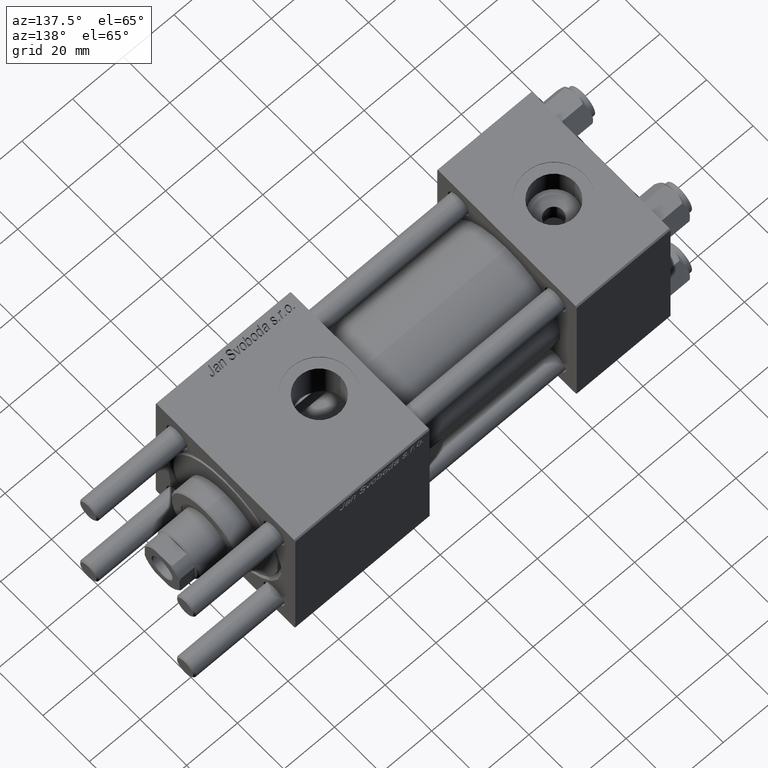
[diagram: clean part render]
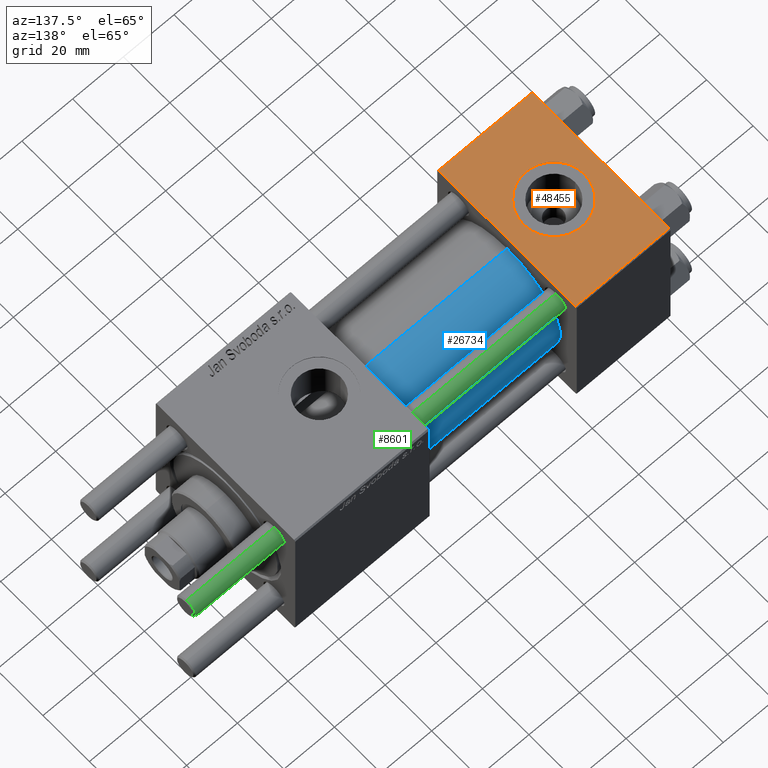
[diagram: same view with three faces highlighted in distinct colors, each labeled with its STEP entity id]
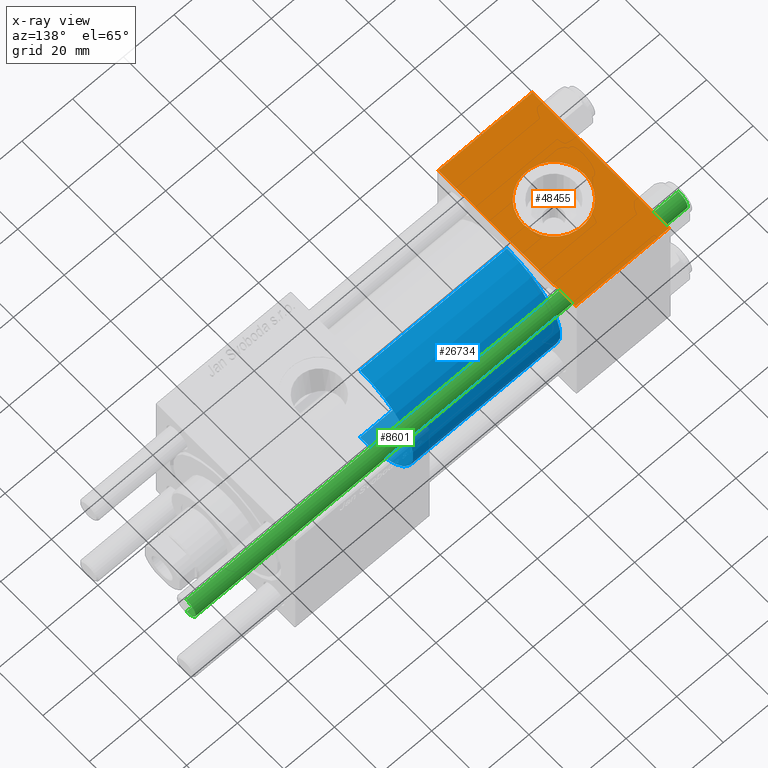
[diagram: x-ray of the same camera — body ghosted, the three highlighted faces saturated]
A machine part, auxiliary view with three faces highlighted in distinct colors.
The next image is the same camera in x-ray (body ghosted, the three faces saturated) — at least one of them is partly hidden behind the body in this view.
Their STEP definitions:

[orange] entity #48455 — the highlighted planar face has unit normal (0, 0, -1).
#434 = DIRECTION ( 'NONE',  ( 0.000000000000000000, 1.000000000000000000, 1.156482317317871725E-16 ) ) ;
#1151 = ORIENTED_EDGE ( 'NONE', *, *, #28059, .F. ) ;
#1510 = LINE ( 'NONE', #36322, #46978 ) ;
#3227 = CIRCLE ( 'NONE', #32623, 12.00000000000000000 ) ;
#3419 = CARTESIAN_POINT ( 'NONE',  ( 37.00000000000000000, -29.50000000000000000, 29.99999999999999289 ) ) ;
#3907 = VERTEX_POINT ( 'NONE', #29486 ) ;
#4024 = LINE ( 'NONE', #26459, #18446 ) ;
#4279 = VECTOR ( 'NONE', #29018, 1000.000000000000000 ) ;
#4511 = CARTESIAN_POINT ( 'NONE',  ( 6.499999999999997335, -1.999870792976790833E-15, 29.99999999999999645 ) ) ;
#5695 = EDGE_CURVE ( 'NONE', #28652, #48502, #4024, .T. ) ;
#8782 = DIRECTION ( 'NONE',  ( 1.000000000000000000, 0.000000000000000000, 0.000000000000000000 ) ) ;
#9067 = CARTESIAN_POINT ( 'NONE',  ( 18.50000000000000000, -3.469446951953614978E-15, 29.99999999999999645 ) ) ;
#9514 = CARTESIAN_POINT ( 'NONE',  ( 0.000000000000000000, -29.49999999999998579, 29.99999999999999289 ) ) ;
#11918 = EDGE_CURVE ( 'NONE', #28652, #49925, #1510, .T. ) ;
#13105 = FACE_BOUND ( 'NONE', #47179, .T. ) ;
#13672 = AXIS2_PLACEMENT_3D ( 'NONE', #24936, #51627, #42171 ) ;
#15861 = CARTESIAN_POINT ( 'NONE',  ( 37.00000000000000000, 29.49999999999999289, 30.00000000000000000 ) ) ;
#16380 = VERTEX_POINT ( 'NONE', #4511 ) ;
#17697 = DIRECTION ( 'NONE',  ( 0.000000000000000000, 0.000000000000000000, 1.000000000000000000 ) ) ;
#18446 = VECTOR ( 'NONE', #48567, 1000.000000000000000 ) ;
#20114 = LINE ( 'NONE', #3419, #4279 ) ;
#22395 = ORIENTED_EDGE ( 'NONE', *, *, #23540, .T. ) ;
#23540 = EDGE_CURVE ( 'NONE', #48502, #56705, #37610, .T. ) ;
#24148 = ORIENTED_EDGE ( 'NONE', *, *, #37829, .F. ) ;
#24936 = CARTESIAN_POINT ( 'NONE',  ( 18.50000000000000000, -3.469446951953614978E-15, 29.99999999999999645 ) ) ;
#26459 = CARTESIAN_POINT ( 'NONE',  ( 0.000000000000000000, 29.49999999999999289, 30.00000000000000000 ) ) ;
#28059 = EDGE_CURVE ( 'NONE', #3907, #16380, #3227, .T. ) ;
#28652 = VERTEX_POINT ( 'NONE', #15861 ) ;
#29018 = DIRECTION ( 'NONE',  ( 1.000000000000000000, 0.000000000000000000, 0.000000000000000000 ) ) ;
#29486 = CARTESIAN_POINT ( 'NONE',  ( 30.50000000000000000, -3.469446951953614978E-15, 29.99999999999999645 ) ) ;
#30635 = CARTESIAN_POINT ( 'NONE',  ( 37.00000000000000000, 29.99999999999999289, 30.00000000000000000 ) ) ;
#31309 = ORIENTED_EDGE ( 'NONE', *, *, #11918, .F. ) ;
#31911 = CARTESIAN_POINT ( 'NONE',  ( 37.00000000000000000, -29.49999999999998579, 29.99999999999999289 ) ) ;
#32623 = AXIS2_PLACEMENT_3D ( 'NONE', #9067, #17697, #8782 ) ;
#32626 = VECTOR ( 'NONE', #32722, 1000.000000000000000 ) ;
#32722 = DIRECTION ( 'NONE',  ( 0.000000000000000000, -1.000000000000000000, -1.156482317317871725E-16 ) ) ;
#32725 = EDGE_LOOP ( 'NONE', ( #22395, #48424, #31309, #49373 ) ) ;
#33421 = EDGE_CURVE ( 'NONE', #56705, #49925, #20114, .T. ) ;
#34801 = CIRCLE ( 'NONE', #13672, 12.00000000000000000 ) ;
#36322 = CARTESIAN_POINT ( 'NONE',  ( 37.00000000000000000, 29.99999999999999289, 30.00000000000000000 ) ) ;
#37610 = LINE ( 'NONE', #46784, #32626 ) ;
#37829 = EDGE_CURVE ( 'NONE', #16380, #3907, #34801, .T. ) ;
#38353 = AXIS2_PLACEMENT_3D ( 'NONE', #30635, #48152, #434 ) ;
#42171 = DIRECTION ( 'NONE',  ( 1.000000000000000000, 0.000000000000000000, 0.000000000000000000 ) ) ;
#46784 = CARTESIAN_POINT ( 'NONE',  ( 0.000000000000000000, 29.99999999999999289, 30.00000000000000000 ) ) ;
#46978 = VECTOR ( 'NONE', #50342, 1000.000000000000000 ) ;
#47179 = EDGE_LOOP ( 'NONE', ( #1151, #24148 ) ) ;
#48152 = DIRECTION ( 'NONE',  ( 0.000000000000000000, 1.156482317317871725E-16, -1.000000000000000000 ) ) ;
#48424 = ORIENTED_EDGE ( 'NONE', *, *, #33421, .T. ) ;
#48455 = ADVANCED_FACE ( 'NONE', ( #13105, #53021 ), #53311, .F. ) ;
#48502 = VERTEX_POINT ( 'NONE', #54711 ) ;
#48567 = DIRECTION ( 'NONE',  ( -1.000000000000000000, 0.000000000000000000, 0.000000000000000000 ) ) ;
#49373 = ORIENTED_EDGE ( 'NONE', *, *, #5695, .T. ) ;
#49925 = VERTEX_POINT ( 'NONE', #31911 ) ;
#50342 = DIRECTION ( 'NONE',  ( 0.000000000000000000, -1.000000000000000000, -1.156482317317871725E-16 ) ) ;
#51627 = DIRECTION ( 'NONE',  ( 0.000000000000000000, 0.000000000000000000, 1.000000000000000000 ) ) ;
#53021 = FACE_OUTER_BOUND ( 'NONE', #32725, .T. ) ;
#53311 = PLANE ( 'NONE',  #38353 ) ;
#54711 = CARTESIAN_POINT ( 'NONE',  ( 0.000000000000000000, 29.49999999999999289, 30.00000000000000000 ) ) ;
#56705 = VERTEX_POINT ( 'NONE', #9514 ) ;

[blue] entity #26734 — the highlighted cylindrical surface (partial cylindrical patch) has radius 23 mm, axis along (-1, -0, -0).
#522 = CIRCLE ( 'NONE', #34477, 23.00000000000000000 ) ;
#4276 = ORIENTED_EDGE ( 'NONE', *, *, #29025, .F. ) ;
#4792 = VECTOR ( 'NONE', #26915, 1000.000000000000000 ) ;
#5593 = ORIENTED_EDGE ( 'NONE', *, *, #13098, .F. ) ;
#7727 = CARTESIAN_POINT ( 'NONE',  ( 37.00000000000000000, -2.602085213965210642E-15, 0.000000000000000000 ) ) ;
#8286 = DIRECTION ( 'NONE',  ( 1.000000000000000000, -0.000000000000000000, 0.000000000000000000 ) ) ;
#9457 = DIRECTION ( 'NONE',  ( -1.000000000000000000, -0.000000000000000000, -0.000000000000000000 ) ) ;
#12316 = CYLINDRICAL_SURFACE ( 'NONE', #27978, 23.00000000000000000 ) ;
#12335 = CARTESIAN_POINT ( 'NONE',  ( 95.00000000000000000, -2.602085213965210642E-15, 0.000000000000000000 ) ) ;
#13098 = EDGE_CURVE ( 'NONE', #20404, #41729, #53607, .T. ) ;
#17972 = ORIENTED_EDGE ( 'NONE', *, *, #34256, .T. ) ;
#17978 = CARTESIAN_POINT ( 'NONE',  ( 95.00000000000000000, -2.602085213965210642E-15, 23.00000000000000000 ) ) ;
#19029 = VECTOR ( 'NONE', #9457, 1000.000000000000000 ) ;
#19765 = AXIS2_PLACEMENT_3D ( 'NONE', #12335, #29584, #20960 ) ;
#20404 = VERTEX_POINT ( 'NONE', #17978 ) ;
#20960 = DIRECTION ( 'NONE',  ( 0.000000000000000000, 0.000000000000000000, -1.000000000000000000 ) ) ;
#21328 = VERTEX_POINT ( 'NONE', #55073 ) ;
#22402 = LINE ( 'NONE', #49094, #19029 ) ;
#26734 = ADVANCED_FACE ( 'NONE', ( #34169 ), #12316, .T. ) ;
#26915 = DIRECTION ( 'NONE',  ( -1.000000000000000000, -0.000000000000000000, -0.000000000000000000 ) ) ;
#27978 = AXIS2_PLACEMENT_3D ( 'NONE', #29848, #30467, #31037 ) ;
#29025 = EDGE_CURVE ( 'NONE', #51037, #20404, #43640, .T. ) ;
#29097 = EDGE_CURVE ( 'NONE', #21328, #41729, #522, .T. ) ;
#29584 = DIRECTION ( 'NONE',  ( 1.000000000000000000, 0.000000000000000000, 0.000000000000000000 ) ) ;
#29848 = CARTESIAN_POINT ( 'NONE',  ( 95.00000000000000000, -2.602085213965210642E-15, 0.000000000000000000 ) ) ;
#30467 = DIRECTION ( 'NONE',  ( -1.000000000000000000, -0.000000000000000000, -0.000000000000000000 ) ) ;
#31037 = DIRECTION ( 'NONE',  ( 0.000000000000000000, 0.000000000000000000, 1.000000000000000000 ) ) ;
#31234 = CARTESIAN_POINT ( 'NONE',  ( 95.00000000000000000, -2.602085213965210642E-15, 23.00000000000000000 ) ) ;
#34169 = FACE_OUTER_BOUND ( 'NONE', #56515, .T. ) ;
#34256 = EDGE_CURVE ( 'NONE', #51037, #21328, #22402, .T. ) ;
#34477 = AXIS2_PLACEMENT_3D ( 'NONE', #7727, #8286, #51681 ) ;
#38306 = ORIENTED_EDGE ( 'NONE', *, *, #29097, .T. ) ;
#41729 = VERTEX_POINT ( 'NONE', #51585 ) ;
#43640 = CIRCLE ( 'NONE', #19765, 23.00000000000000000 ) ;
#47961 = CARTESIAN_POINT ( 'NONE',  ( 95.00000000000000000, 2.146024240737012665E-16, -23.00000000000000000 ) ) ;
#49094 = CARTESIAN_POINT ( 'NONE',  ( 95.00000000000000000, 2.146024240737012665E-16, -23.00000000000000000 ) ) ;
#51037 = VERTEX_POINT ( 'NONE', #47961 ) ;
#51585 = CARTESIAN_POINT ( 'NONE',  ( 37.00000000000000000, -2.602085213965210642E-15, 23.00000000000000000 ) ) ;
#51681 = DIRECTION ( 'NONE',  ( 0.000000000000000000, 0.000000000000000000, 1.000000000000000000 ) ) ;
#53607 = LINE ( 'NONE', #31234, #4792 ) ;
#55073 = CARTESIAN_POINT ( 'NONE',  ( 37.00000000000000000, 2.146024240737012665E-16, -23.00000000000000000 ) ) ;
#56515 = EDGE_LOOP ( 'NONE', ( #4276, #17972, #38306, #5593 ) ) ;

[green] entity #8601 — the highlighted cylindrical surface (edge-blend (fillet) strip) has radius 4 mm, axis along (1, -0, -0).
#1046 = ORIENTED_EDGE ( 'NONE', *, *, #50572, .T. ) ;
#2177 = ORIENTED_EDGE ( 'NONE', *, *, #29091, .F. ) ;
#2443 = DIRECTION ( 'NONE',  ( -1.000000000000000000, 0.000000000000000000, 0.000000000000000000 ) ) ;
#2728 = FACE_OUTER_BOUND ( 'NONE', #51389, .T. ) ;
#3908 = LINE ( 'NONE', #12843, #41164 ) ;
#8601 = ADVANCED_FACE ( 'NONE', ( #2728 ), #29182, .T. ) ;
#9319 = ORIENTED_EDGE ( 'NONE', *, *, #38936, .T. ) ;
#10643 = VERTEX_POINT ( 'NONE', #17807 ) ;
#11367 = VERTEX_POINT ( 'NONE', #21009 ) ;
#12735 = DIRECTION ( 'NONE',  ( 1.000000000000000000, 0.000000000000000000, 0.000000000000000000 ) ) ;
#12843 = CARTESIAN_POINT ( 'NONE',  ( 4.000000000000000000, 4.898587196589412829E-16, 195.0000000000000000 ) ) ;
#14868 = AXIS2_PLACEMENT_3D ( 'NONE', #50142, #19712, #2443 ) ;
#14962 = DIRECTION ( 'NONE',  ( 1.000000000000000000, 0.000000000000000000, 0.000000000000000000 ) ) ;
#17807 = CARTESIAN_POINT ( 'NONE',  ( -4.000000000000000000, 0.000000000000000000, 0.5000000000000004441 ) ) ;
#19712 = DIRECTION ( 'NONE',  ( -0.000000000000000000, -0.000000000000000000, -1.000000000000000000 ) ) ;
#21009 = CARTESIAN_POINT ( 'NONE',  ( 4.000000000000000000, 4.898587196589412829E-16, 0.5000000000000004441 ) ) ;
#21648 = DIRECTION ( 'NONE',  ( 0.000000000000000000, 0.000000000000000000, -1.000000000000000000 ) ) ;
#27382 = CARTESIAN_POINT ( 'NONE',  ( 4.000000000000000000, 4.898587196589412829E-16, 194.5000000000000568 ) ) ;
#29091 = EDGE_CURVE ( 'NONE', #43305, #10643, #47665, .T. ) ;
#29182 = CYLINDRICAL_SURFACE ( 'NONE', #14868, 4.000000000000000000 ) ;
#30552 = CARTESIAN_POINT ( 'NONE',  ( 0.000000000000000000, 0.000000000000000000, 194.5000000000000568 ) ) ;
#32778 = CARTESIAN_POINT ( 'NONE',  ( 0.000000000000000000, 0.000000000000000000, 0.5000000000000004441 ) ) ;
#34051 = EDGE_CURVE ( 'NONE', #11367, #10643, #41052, .T. ) ;
#34414 = DIRECTION ( 'NONE',  ( -0.000000000000000000, -0.000000000000000000, -1.000000000000000000 ) ) ;
#34465 = CARTESIAN_POINT ( 'NONE',  ( -4.000000000000000000, 0.000000000000000000, 195.0000000000000000 ) ) ;
#38936 = EDGE_CURVE ( 'NONE', #43305, #45012, #47621, .T. ) ;
#40830 = DIRECTION ( 'NONE',  ( -0.000000000000000000, -0.000000000000000000, 1.000000000000000000 ) ) ;
#41052 = CIRCLE ( 'NONE', #46537, 4.000000000000000000 ) ;
#41164 = VECTOR ( 'NONE', #34414, 1000.000000000000000 ) ;
#41800 = VECTOR ( 'NONE', #52235, 1000.000000000000000 ) ;
#42127 = AXIS2_PLACEMENT_3D ( 'NONE', #30552, #21648, #12735 ) ;
#43305 = VERTEX_POINT ( 'NONE', #43679 ) ;
#43679 = CARTESIAN_POINT ( 'NONE',  ( -4.000000000000000000, 0.000000000000000000, 194.5000000000000568 ) ) ;
#45012 = VERTEX_POINT ( 'NONE', #27382 ) ;
#46537 = AXIS2_PLACEMENT_3D ( 'NONE', #32778, #40830, #14962 ) ;
#47621 = CIRCLE ( 'NONE', #42127, 4.000000000000000000 ) ;
#47665 = LINE ( 'NONE', #34465, #41800 ) ;
#50142 = CARTESIAN_POINT ( 'NONE',  ( 0.000000000000000000, 0.000000000000000000, 195.0000000000000000 ) ) ;
#50572 = EDGE_CURVE ( 'NONE', #45012, #11367, #3908, .T. ) ;
#51389 = EDGE_LOOP ( 'NONE', ( #9319, #1046, #51989, #2177 ) ) ;
#51989 = ORIENTED_EDGE ( 'NONE', *, *, #34051, .T. ) ;
#52235 = DIRECTION ( 'NONE',  ( -0.000000000000000000, -0.000000000000000000, -1.000000000000000000 ) ) ;